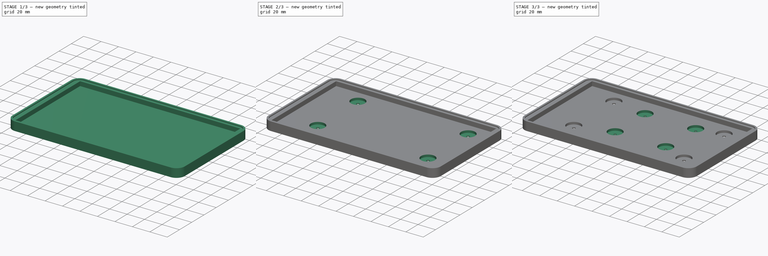
[diagram: build sequence overview — one tinted view per stage of 3, left to right]
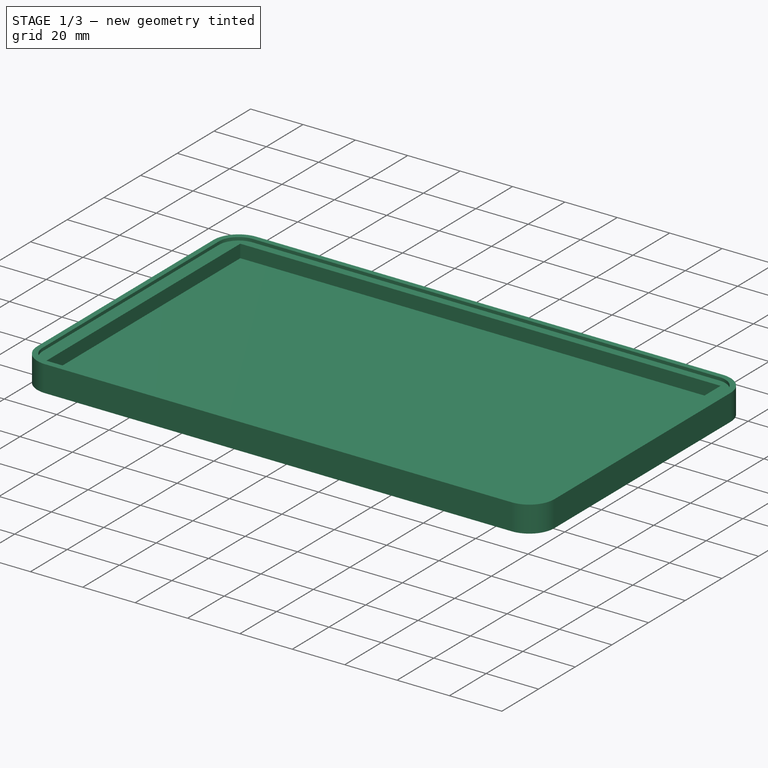
[diagram: stage 1 of 3 — iso view after this stage's code; geometry added in this stage tinted green]
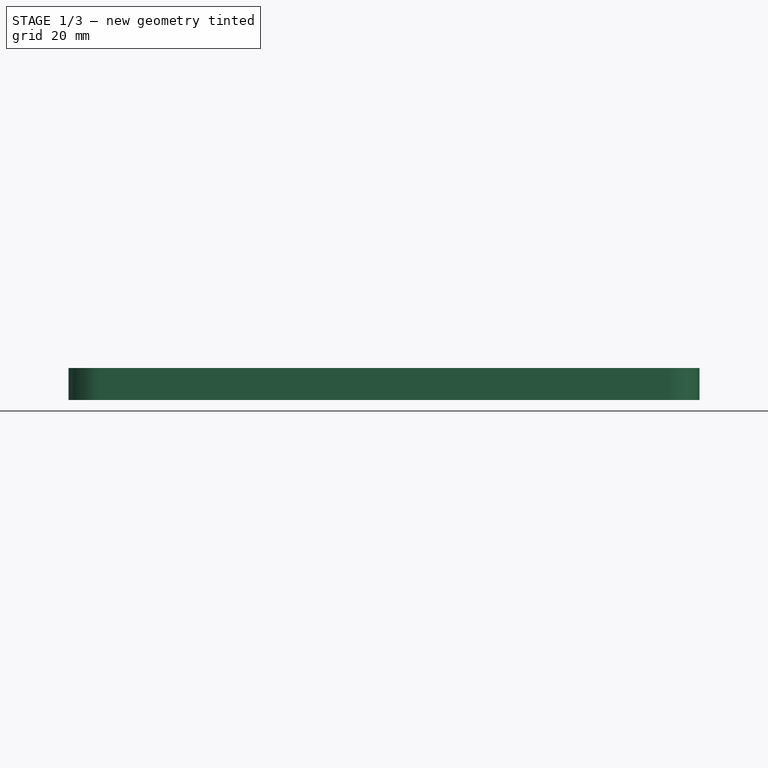
[diagram: stage 1 of 3 — front view after this stage's code; geometry added in this stage tinted green]
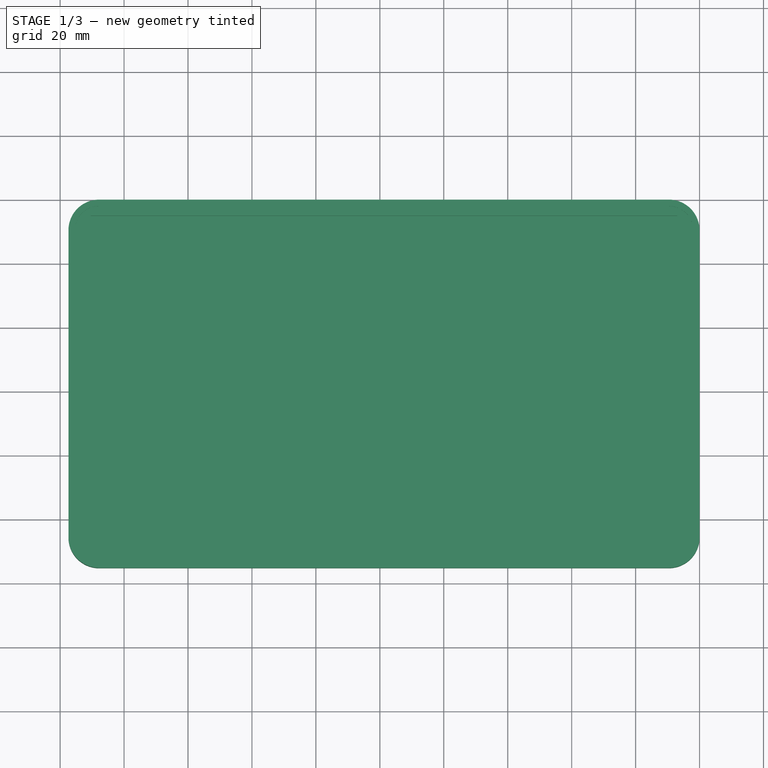
[diagram: stage 1 of 3 — top view after this stage's code; geometry added in this stage tinted green]
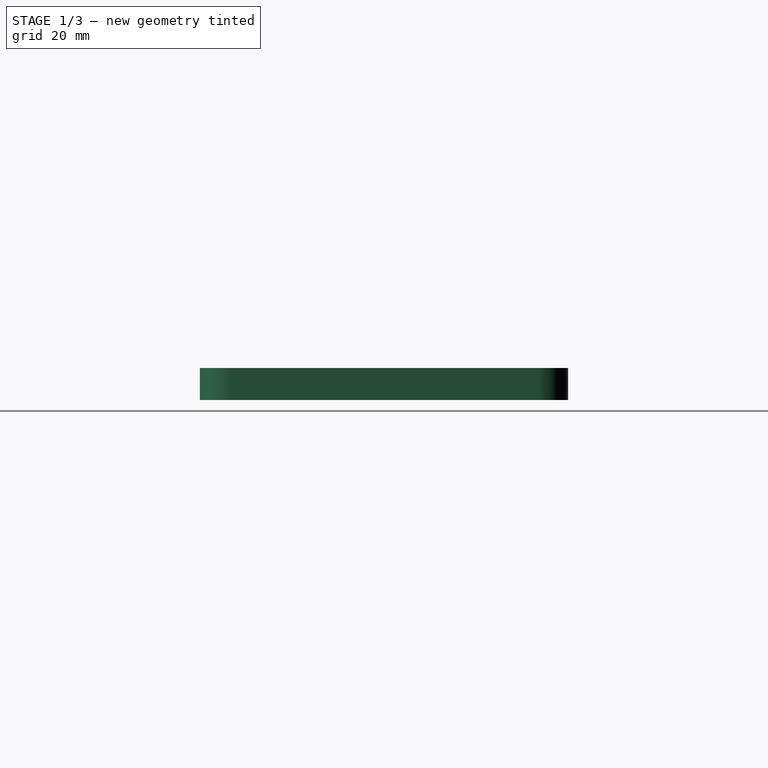
[diagram: stage 1 of 3 — right view after this stage's code; geometry added in this stage tinted green]
FCSTD DOCUMENT  (FreeCAD 0.20R29603 (Git))
Label: Support-Ecran7p-Rpi
License: Public Domain
LicenseURL: http://en.wikipedia.org/wiki/Public_domain
objects: Sketcher::SketchObject×6, PartDesign::LinearPattern×4, PartDesign::Pocket×3, PartDesign::Hole×2, PartDesign::MultiTransform×2, PartDesign::Pad×1, PartDesign::Body×1
note: 25 computed .brp shape members not serialized (recipe doc carries the construction recipe); baked Part::Feature solids carry a one-line shape summary decoded from their .brp

FEATURE [Sketcher::SketchObject] Sketch
  FullyConstrained = true
  MapMode = 5
  Support = -> [XY_Plane]
  sketch-geometry (9):
    g0: ArcOfCircle CenterX=-187.8 CenterY=-9.6 CenterZ=0 NormalX=0 NormalY=0 NormalZ=1 AngleXU=0 Radius=9.6 StartAngle=1.5708 EndAngle=3.14159
    g1: LineSegment StartX=-187.8 StartY=0 StartZ=0 EndX=-9.6 EndY=0 EndZ=0
    g2: ArcOfCircle CenterX=-9.6 CenterY=-9.6 CenterZ=0 NormalX=0 NormalY=0 NormalZ=1 AngleXU=0 Radius=9.6 StartAngle=1e-16 EndAngle=1.5708
    g3: LineSegment StartX=0 StartY=-9.6 StartZ=0 EndX=0 EndY=-105.6 EndZ=0
    g4: ArcOfCircle CenterX=-9.6 CenterY=-105.6 CenterZ=0 NormalX=0 NormalY=0 NormalZ=1 AngleXU=0 Radius=9.6 StartAngle=4.71239 EndAngle=6.28319
    g5: LineSegment StartX=-9.6 StartY=-115.2 StartZ=0 EndX=-187.8 EndY=-115.2 EndZ=0
    g6: ArcOfCircle CenterX=-187.8 CenterY=-105.6 CenterZ=0 NormalX=0 NormalY=0 NormalZ=1 AngleXU=0 Radius=9.6 StartAngle=3.14159 EndAngle=4.71239
    g7: GeomPoint X=0 Y=-115.2 Z=0
    g8: LineSegment StartX=-197.4 StartY=-9.6 StartZ=0 EndX=-197.4 EndY=-105.6 EndZ=0
  constraints (23):
    c: Tangent(g0,g1) = 1.5708
    c: Tangent(g1,g2) = 1.5708
    c: Tangent(g2,g3) = 1.5708
    c: Tangent(g3,g4) = 1.5708
    c: Tangent(g4,g5) = 1.5708
    c: Tangent(g5,g6) = 1.5708
    c: Horizontal(g1)
    c: Horizontal(g5)
    c: Vertical(g3)
    c: Equal(g0,g2)
    c: Equal(g2,g4)
    c: Equal(g4,g6)
    c: PointOnObject(g7,g3)
    c: PointOnObject(g7,g5)
    c: Radius(g2) = 9.6
    c: DistanceX(g6,g3) = 197.4
    c: DistanceY(g5,g0) = 115.2
    c: PointOnObject(g1,g-1)
    c: PointOnObject(g2,g-2)
    c: Coincident(g8,g6)
    c: Vertical(g8)
    c: Tangent(g8,g6)
    c: Tangent(g8,g0) = -1.5708
FEATURE [PartDesign::Pad] Pad  label="External Rounded Body"
  Direction = (0,0,1)
  Length = 10
  Length2 = 10
  Profile = -> Sketch
  ReferenceAxis = -> Sketch [N_Axis]
  Type = 0
FEATURE [Sketcher::SketchObject] Sketch001
  FullyConstrained = true
  MapMode = 5
  Placement = pos=(0,0,10) rot=(0,0,1;0rad)
  Support = -> [Pad]
  sketch-geometry (10):
    g0: ArcOfCircle CenterX=-187.8 CenterY=-9.6 CenterZ=0 NormalX=0 NormalY=0 NormalZ=1 AngleXU=0 Radius=7.6 StartAngle=1.5708 EndAngle=3.14159
    g1: LineSegment StartX=-187.8 StartY=-2 StartZ=0 EndX=-9.6 EndY=-2 EndZ=0
    g2: ArcOfCircle CenterX=-9.6 CenterY=-9.6 CenterZ=0 NormalX=0 NormalY=0 NormalZ=1 AngleXU=0 Radius=7.6 StartAngle=2e-16 EndAngle=1.5708
    g3: LineSegment StartX=-2 StartY=-9.6 StartZ=0 EndX=-2 EndY=-105.6 EndZ=0
    g4: ArcOfCircle CenterX=-9.6 CenterY=-105.6 CenterZ=0 NormalX=0 NormalY=0 NormalZ=1 AngleXU=0 Radius=7.6 StartAngle=4.71239 EndAngle=6.28319
    g5: LineSegment StartX=-9.6 StartY=-113.2 StartZ=0 EndX=-187.8 EndY=-113.2 EndZ=0
    g6: ArcOfCircle CenterX=-187.8 CenterY=-105.6 CenterZ=0 NormalX=0 NormalY=0 NormalZ=1 AngleXU=0 Radius=7.6 StartAngle=3.14159 EndAngle=4.71239
    g7: LineSegment StartX=-195.4 StartY=-105.6 StartZ=0 EndX=-195.4 EndY=-9.6 EndZ=0
    g8: GeomPoint X=-195.4 Y=-2 Z=0
    g9: GeomPoint X=-2 Y=-113.2 Z=0
  constraints (24):
    c: Tangent(g0,g1) = 1.5708
    c: Tangent(g1,g2) = 1.5708
    c: Tangent(g2,g3) = 1.5708
    c: Tangent(g3,g4) = 1.5708
    c: Tangent(g4,g5) = 1.5708
    c: Tangent(g5,g6) = 1.5708
    c: Tangent(g6,g7) = 1.5708
    c: Tangent(g7,g0) = 1.5708
    c: Horizontal(g1)
    c: Horizontal(g5)
    c: Vertical(g3)
    c: Vertical(g7)
    c: Equal(g0,g2)
    c: Equal(g2,g4)
    c: Equal(g4,g6)
    c: PointOnObject(g8,g1)
    c: PointOnObject(g8,g7)
    c: PointOnObject(g9,g3)
    c: PointOnObject(g9,g5)
    c: Radius(g2) = 7.6
    c: DistanceX(g0,g2) = 193.4
    c: DistanceY(g4,g1) = 111.2
    c: DistanceY(g0,g-1) = 2
    c: DistanceX(g-1,g2) = -2
FEATURE [PartDesign::Pocket] Pocket  label="Internal Rounded Body"
  BaseFeature = -> Pad
  Direction = (0,0,-1)
  Length = 1.2
  Length2 = 5
  Profile = -> Sketch001
  ReferenceAxis = -> Sketch001 [N_Axis]
  Type = 0
FEATURE [Sketcher::SketchObject] Sketch002
  ExternalGeometry = -> [Pocket]
  FullyConstrained = true
  MapMode = 5
  Placement = pos=(0,0,8.8) rot=(0,0,1;0rad)
  Support = -> [Pocket]
  sketch-geometry (4):
    g0: LineSegment StartX=-190.4 StartY=-5 StartZ=0 EndX=-7 EndY=-5 EndZ=0
    g1: LineSegment StartX=-7 StartY=-5 StartZ=0 EndX=-7 EndY=-110.7 EndZ=0
    g2: LineSegment StartX=-7 StartY=-110.7 StartZ=0 EndX=-190.4 EndY=-110.7 EndZ=0
    g3: LineSegment StartX=-190.4 StartY=-110.7 StartZ=0 EndX=-190.4 EndY=-5 EndZ=0
  constraints (12):
    c: Coincident(g0,g1)
    c: Coincident(g1,g2)
    c: Coincident(g2,g3)
    c: Coincident(g3,g0)
    c: Horizontal(g0)
    c: Horizontal(g2)
    c: Vertical(g1)
    c: Vertical(g3)
    c: DistanceY(g-3,g2) = 2.5
    c: DistanceY(g0,g-4) = 3
    c: DistanceX(g-5,g0) = 5
    c: DistanceX(g0,g-6) = 5
FEATURE [PartDesign::Pocket] Pocket001  label="Rectangular Cavity"
  BaseFeature = -> Pocket
  Direction = (0,0,-1)
  Length = 5
  Length2 = 5
  Profile = -> Sketch002
  ReferenceAxis = -> Sketch002 [N_Axis]
  Type = 0
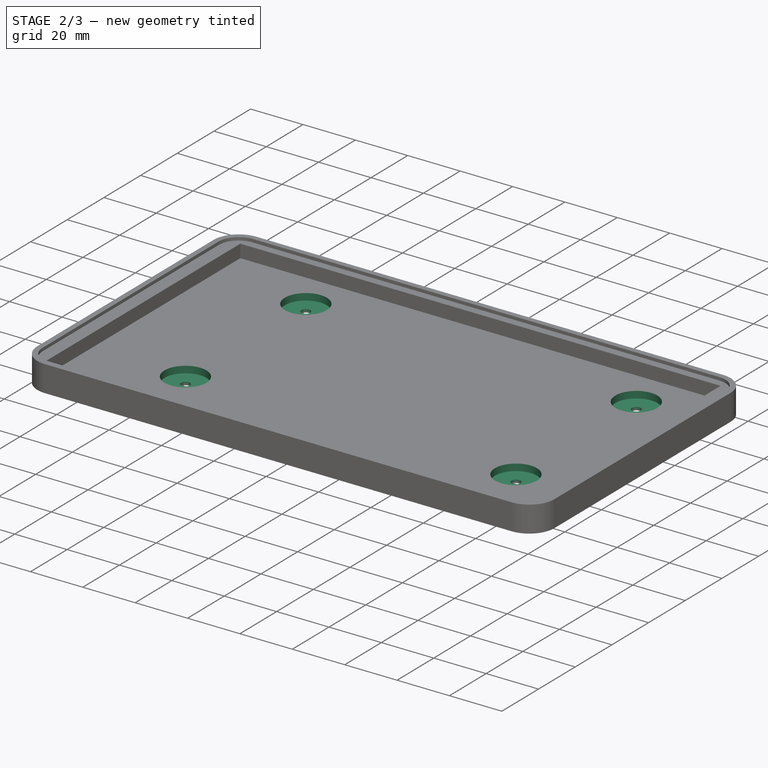
[diagram: stage 2 of 3 — iso view after this stage's code; geometry added in this stage tinted green]
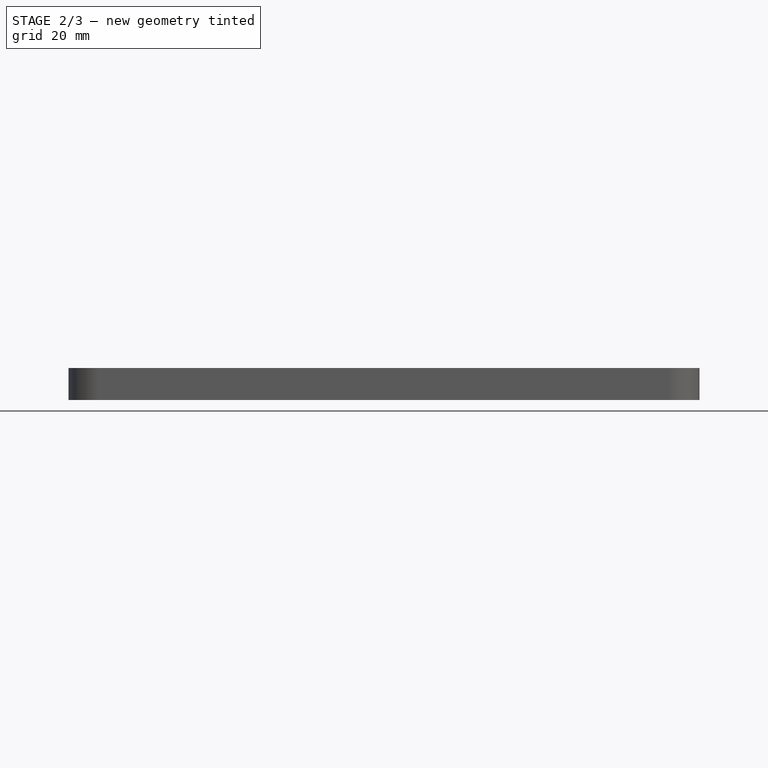
[diagram: stage 2 of 3 — front view after this stage's code; geometry added in this stage tinted green]
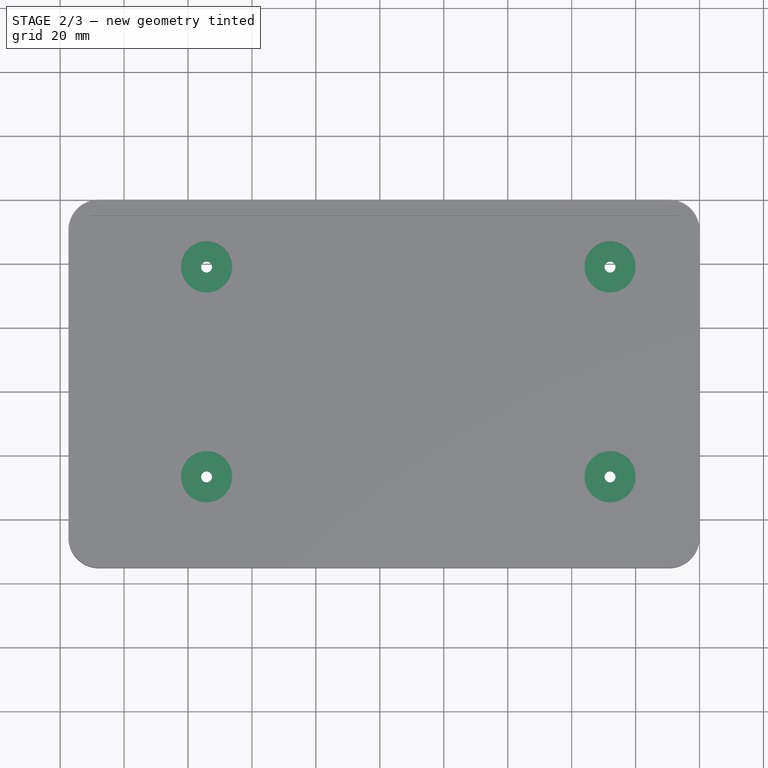
[diagram: stage 2 of 3 — top view after this stage's code; geometry added in this stage tinted green]
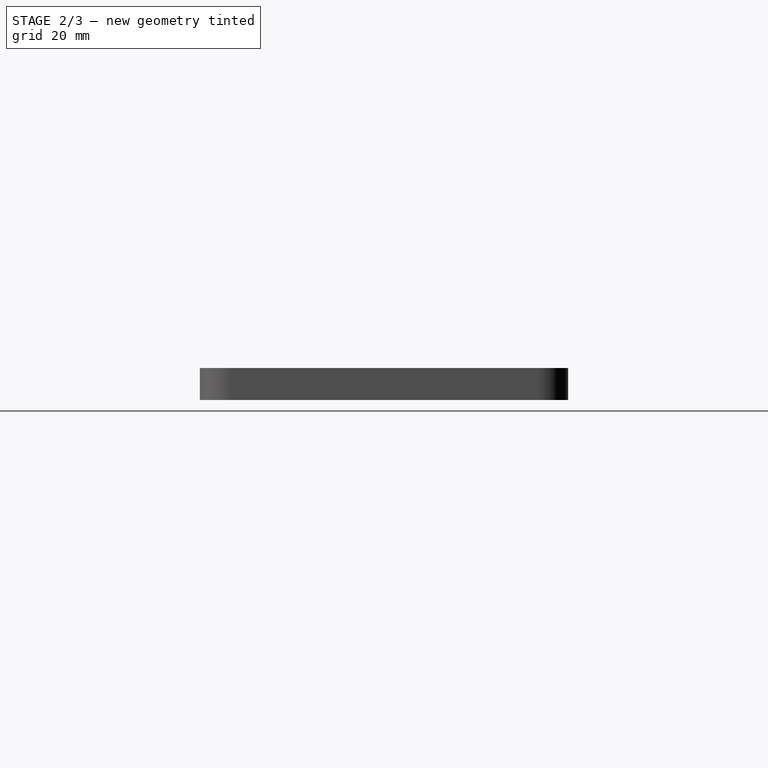
[diagram: stage 2 of 3 — right view after this stage's code; geometry added in this stage tinted green]
FEATURE [Sketcher::SketchObject] Sketch003
  ExternalGeometry = -> [Pocket001]
  FullyConstrained = true
  MapMode = 5
  Placement = pos=(0,0,3.8) rot=(0,0,1;0rad)
  Support = -> [Pocket001]
  sketch-geometry (1):
    g0: Circle CenterX=-28 CenterY=-20.95 CenterZ=0 NormalX=0 NormalY=0 NormalZ=1 AngleXU=0 Radius=1.5
  constraints (3):
    c: Diameter(g0) = 3
    c: DistanceX(g0,g-3) = 21
    c: DistanceY(g0,g-6) = 15.95
FEATURE [PartDesign::Hole] Hole  label="Screen Mounting Hole"
  BaseFeature = -> Pocket001
  CustomThreadClearance = 0
  Depth = 462.125
  DepthType = 1
  Diameter = 3.4
  DrillForDepth = false
  DrillPoint = 1
  DrillPointAngle = 118
  HoleCutCountersinkAngle = 90
  HoleCutCustomValues = false
  HoleCutDepth = 2.6
  HoleCutDiameter = 16
  HoleCutType = 1
  ModelThread = false
  Profile = -> Sketch003
  Tapered = false
  TaperedAngle = 90
  ThreadClass = 0
  ThreadDepth = 462.125
  ThreadDepthType = 0
  ThreadDirection = 0
  ThreadFit = 0
  ThreadSize = 9
  ThreadType = 1
  Threaded = false
  UseCustomThreadClearance = false
FEATURE [PartDesign::LinearPattern] LinearPattern
  Direction = -> X_Axis
  Length = 126.2
  Occurrences = 2
  Reversed = true
FEATURE [PartDesign::LinearPattern] LinearPattern001
  Direction = -> Y_Axis
  Length = 65.65
  Occurrences = 2
  Reversed = true
FEATURE [PartDesign::MultiTransform] MultiTransform
  BaseFeature = -> Hole
  Originals = -> [Hole]
  Transformations = -> [LinearPattern,LinearPattern001]
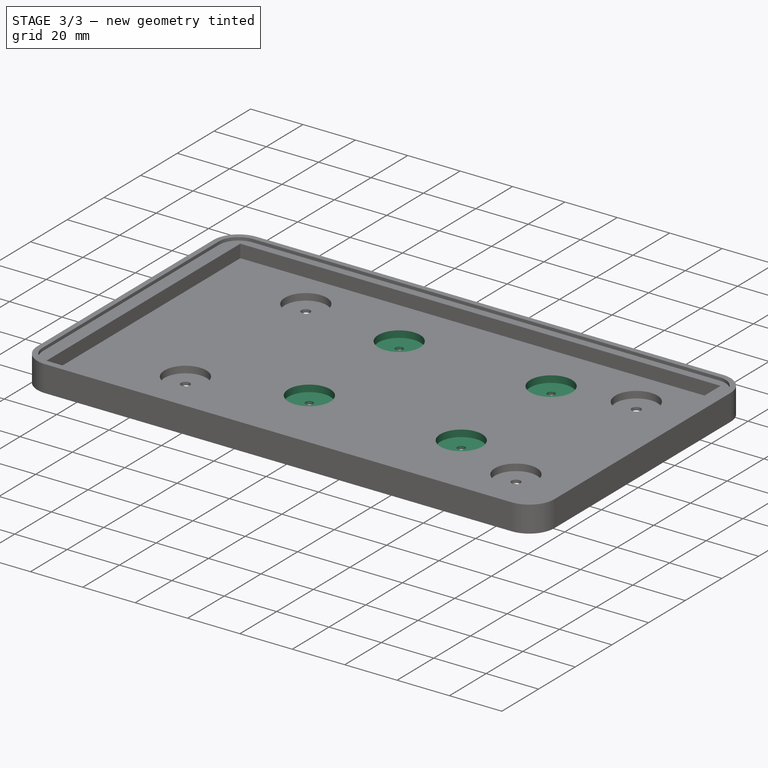
[diagram: stage 3 of 3 — iso view after this stage's code; geometry added in this stage tinted green]
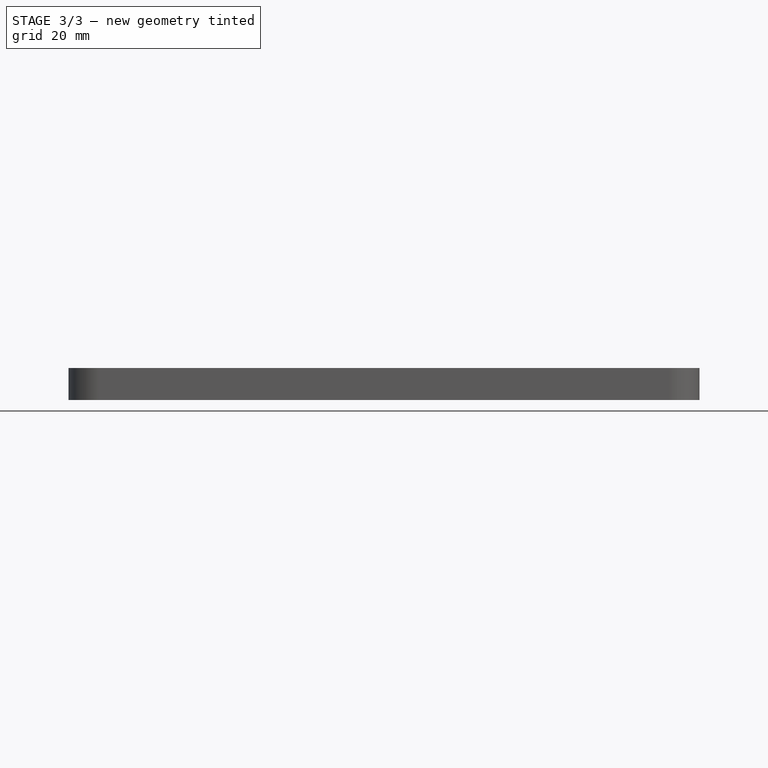
[diagram: stage 3 of 3 — front view after this stage's code; geometry added in this stage tinted green]
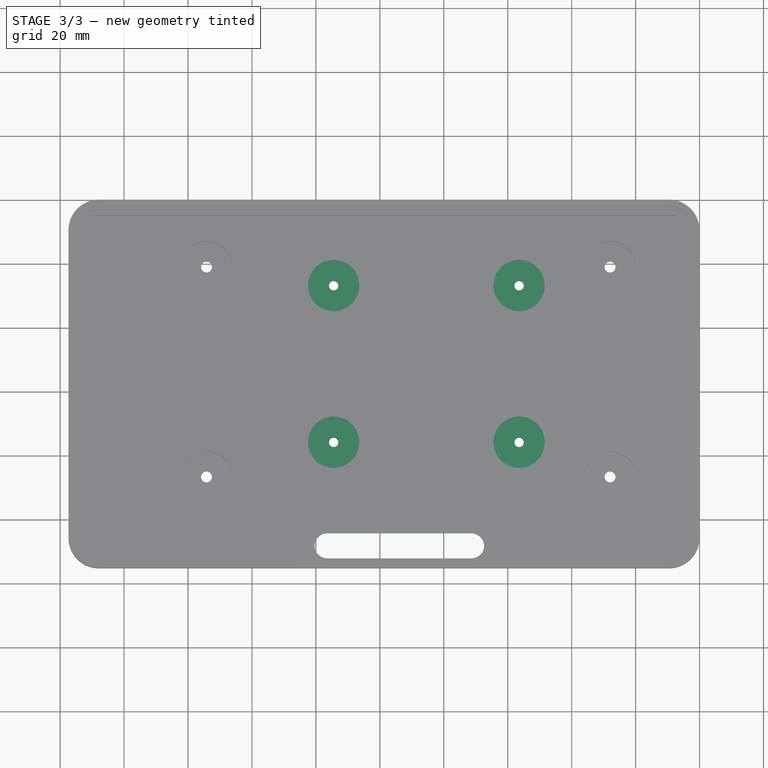
[diagram: stage 3 of 3 — top view after this stage's code; geometry added in this stage tinted green]
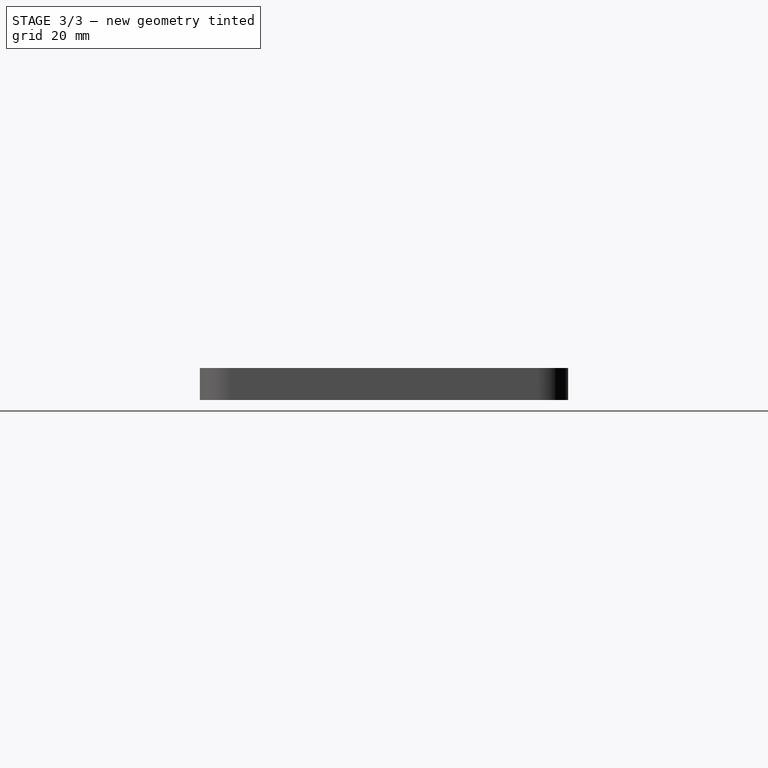
[diagram: stage 3 of 3 — right view after this stage's code; geometry added in this stage tinted green]
FEATURE [Sketcher::SketchObject] Sketch004
  ExternalGeometry = -> [MultiTransform]
  FullyConstrained = true
  MapMode = 5
  Placement = pos=(0,0,3.8) rot=(0,0,1;0rad)
  Support = -> [MultiTransform]
  sketch-geometry (1):
    g0: Circle CenterX=-56.45 CenterY=-26.8 CenterZ=0 NormalX=0 NormalY=0 NormalZ=1 AngleXU=0 Radius=1.25
  constraints (3):
    c: DistanceX(g0,g-3) = 49.45
    c: DistanceY(g0,g-4) = 21.8
    c: Diameter(g0) = 2.5
FEATURE [PartDesign::Hole] Hole001
  BaseFeature = -> MultiTransform
  CustomThreadClearance = 0
  Depth = 462.125
  DepthType = 1
  Diameter = 2.9
  DrillForDepth = false
  DrillPoint = 0
  DrillPointAngle = 118
  HoleCutCountersinkAngle = 90
  HoleCutCustomValues = false
  HoleCutDepth = 2.6
  HoleCutDiameter = 16
  HoleCutType = 1
  ModelThread = false
  Profile = -> Sketch004
  Tapered = false
  TaperedAngle = 90
  ThreadClass = 0
  ThreadDepth = 462.125
  ThreadDepthType = 0
  ThreadDirection = 0
  ThreadFit = 0
  ThreadSize = 8
  ThreadType = 1
  Threaded = false
  UseCustomThreadClearance = false
FEATURE [PartDesign::LinearPattern] LinearPattern002
  Direction = -> X_Axis
  Length = 58
  Occurrences = 2
  Reversed = true
FEATURE [PartDesign::LinearPattern] LinearPattern003
  Direction = -> Y_Axis
  Length = 49
  Occurrences = 2
  Reversed = true
FEATURE [PartDesign::MultiTransform] MultiTransform001
  BaseFeature = -> Hole001
  Originals = -> [Hole001]
  Transformations = -> [LinearPattern002,LinearPattern003]
FEATURE [Sketcher::SketchObject] Sketch005
  ExternalGeometry = -> [MultiTransform001,Sketch]
  FullyConstrained = true
  MapMode = 5
  Placement = pos=(0,0,0) rot=(1,0,0;3.14159rad)
  Support = -> [MultiTransform001]
  sketch-geometry (4):
    g0: ArcOfCircle CenterX=-116.4 CenterY=108.2 CenterZ=0 NormalX=0 NormalY=0 NormalZ=1 AngleXU=0 Radius=4 StartAngle=1.5708 EndAngle=4.71239
    g1: ArcOfCircle CenterX=-71.4 CenterY=108.2 CenterZ=0 NormalX=0 NormalY=0 NormalZ=1 AngleXU=0 Radius=4 StartAngle=4.71239 EndAngle=7.85398
    g2: LineSegment StartX=-116.4 StartY=104.2 StartZ=0 EndX=-71.4 EndY=104.2 EndZ=0
    g3: LineSegment StartX=-71.4 StartY=112.2 StartZ=0 EndX=-116.4 EndY=112.2 EndZ=0
  constraints (10):
    c: Tangent(g0,g2) = -1.5708
    c: Tangent(g2,g1) = -1.5708
    c: Tangent(g1,g3) = -1.5708
    c: Tangent(g3,g0) = -1.5708
    c: Equal(g0,g1)
    c: Horizontal(g2)
    c: DistanceY(g0,g0) = 8
    c: DistanceX(g3,g3) = 45
    c: DistanceY(g0,g-3) = 3
    c: DistanceX(g-4,g0) = 81
FEATURE [PartDesign::Pocket] Pocket002  label="Flat Ribbon Slot"
  BaseFeature = -> MultiTransform001
  Direction = (0,0,1)
  Length = 5
  Length2 = 5
  Profile = -> Sketch005
  ReferenceAxis = -> Sketch005 [N_Axis]
  Type = 1
FEATURE [PartDesign::Body] Body
  Group = -> [Sketch,Pad,Sketch001,Pocket,Sketch002,Pocket001,Sketch003,Hole,MultiTransform,LinearPattern,LinearPattern001,Sketch004,Hole001,MultiTransform001,LinearPattern002,LinearPattern003,Sketch005,Pocket002]
  Origin = -> Origin
  Tip = -> Pocket002
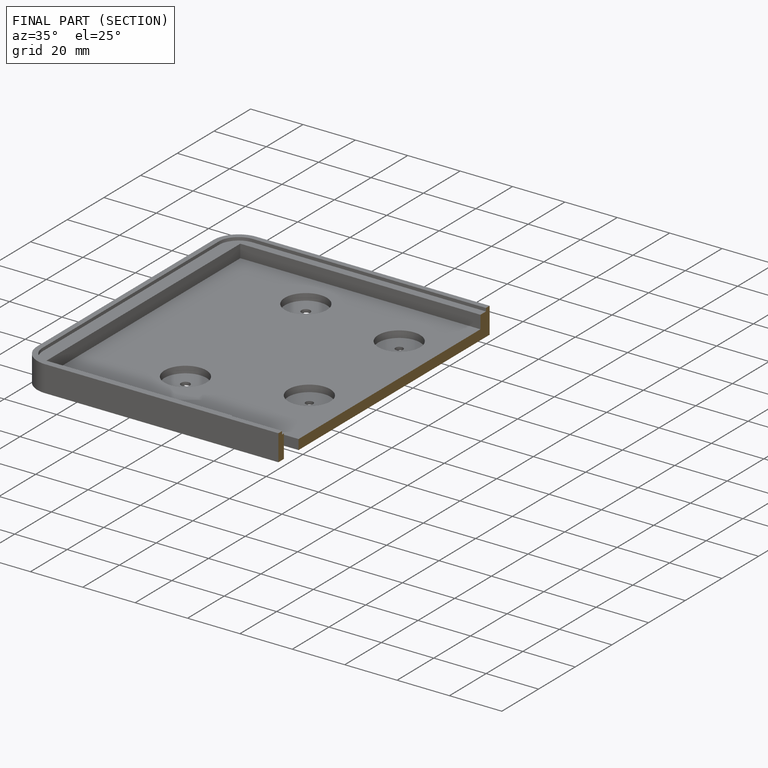
[diagram: finished part — half-section view (interior)]
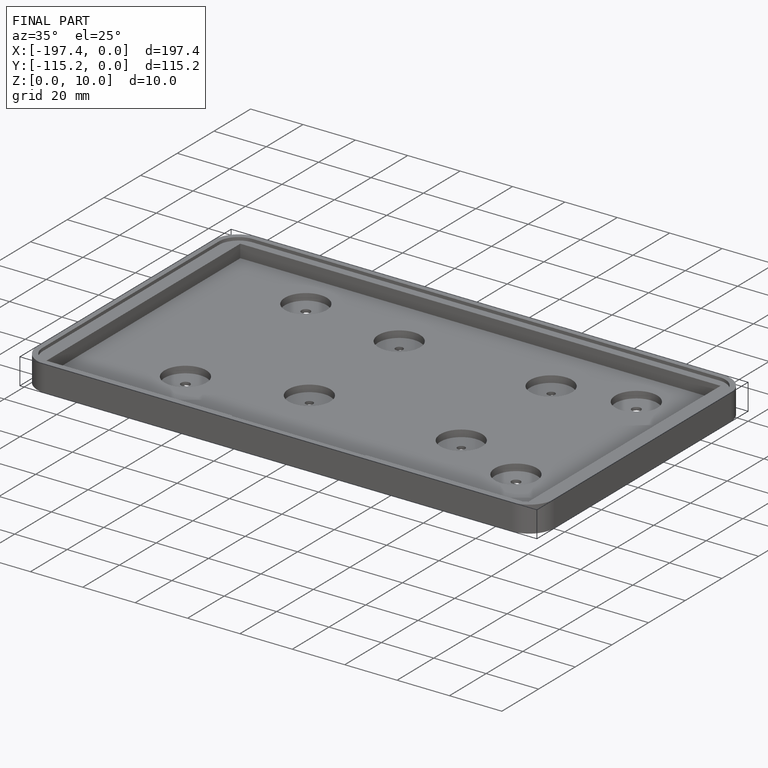
[diagram: finished part — iso view with bounding-box wireframe]
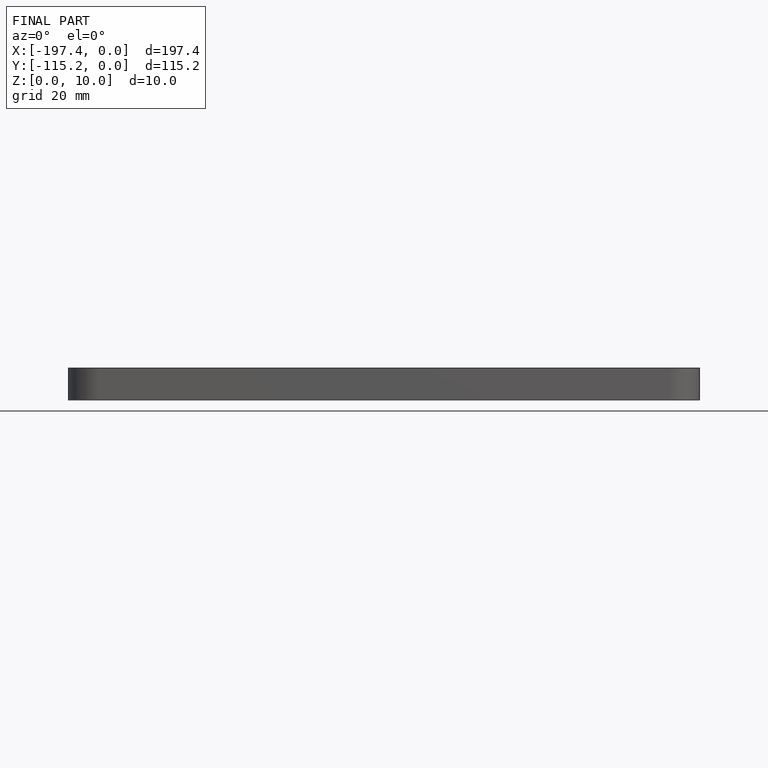
[diagram: finished part — front view with bounding-box wireframe]
